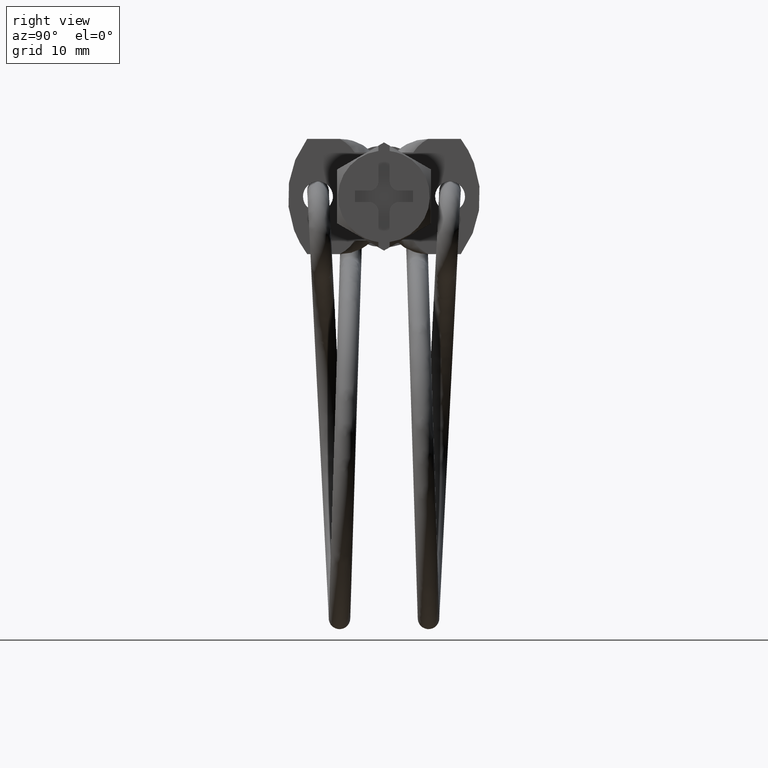
[diagram: clean part render]
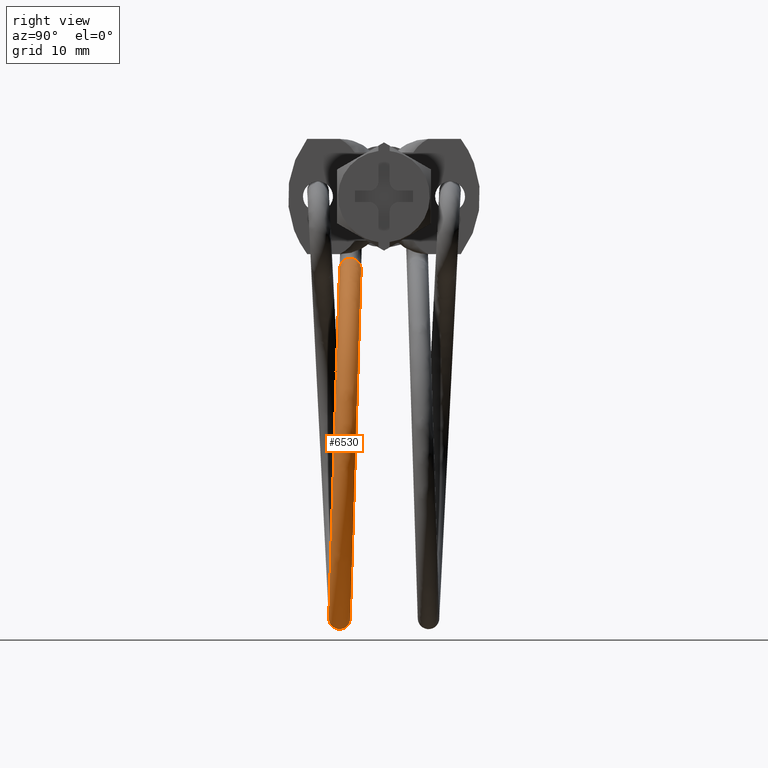
[diagram: same view with one face highlighted and labeled with its STEP entity id]
A machine part, right view. The second image highlights one B-rep face of the part: STEP entity #6530.
In plain terms, the highlighted face is a freeform B-spline surface patch.
Its self-contained STEP definition (entity closure, byte-faithful):
#5993=CARTESIAN_POINT('',(-30.454386614647841,-2.733501426702852,-6.971718508181986));
#5994=VERTEX_POINT('',#5993);
#6000=CARTESIAN_POINT('',(-30.454386614502209,-2.442401410167070,-7.772746310770300));
#6001=VERTEX_POINT('',#6000);
#6002=CARTESIAN_POINT('',(-30.454386614502209,-2.442401410167070,-7.772746310770300));
#6003=CARTESIAN_POINT('',(-30.454386614530659,-2.437409542836940,-7.618183402133792));
#6004=CARTESIAN_POINT('',(-30.454386614584120,-2.488218604476189,-7.325611714358591));
#6005=CARTESIAN_POINT('',(-30.454386614629719,-2.642617586227781,-7.073480896170459));
#6006=CARTESIAN_POINT('',(-30.454386614647841,-2.733501426702852,-6.971718508181986));
#6007=B_SPLINE_CURVE_WITH_KNOTS('',3,(#6002,#6003,#6004,#6005,#6006),.UNSPECIFIED.,.F.,.U.,(4,1,4),(0.000000016998237,0.463841894550051,0.873121413704927),.UNSPECIFIED.);
#6008=EDGE_CURVE('',#6001,#5994,#6007,.T.);
#6043=CARTESIAN_POINT('',(-30.454386614502209,-4.741293517165886,-7.701366479009998));
#6044=VERTEX_POINT('',#6043);
#6053=CARTESIAN_POINT('',(-30.454386614502209,-3.556157547786270,-6.587610341391132));
#6054=VERTEX_POINT('',#6053);
#6055=CARTESIAN_POINT('',(-30.454386614502209,-3.556157547786270,-6.587610341391132));
#6056=CARTESIAN_POINT('',(-30.454386614502369,-3.697235524930150,-6.583095772587232));
#6057=CARTESIAN_POINT('',(-30.454386614502010,-3.914677767675308,-6.616863168630717));
#6058=CARTESIAN_POINT('',(-30.454386614502329,-4.197565011027152,-6.748432708079373));
#6059=CARTESIAN_POINT('',(-30.454386614502269,-4.377822643602884,-6.887222043058672));
#6060=CARTESIAN_POINT('',(-30.454386614502020,-4.526803758234594,-7.057718248104353));
#6061=CARTESIAN_POINT('',(-30.454386614502411,-4.679166138555701,-7.308086639766808));
#6062=CARTESIAN_POINT('',(-30.454386614502042,-4.736549054896689,-7.541450523485653));
#6063=CARTESIAN_POINT('',(-30.454386614502209,-4.741293517165886,-7.701366479009998));
#6064=B_SPLINE_CURVE_WITH_KNOTS('',3,(#6055,#6056,#6057,#6058,#6059,#6060,#6061,#6062,#6063),.UNSPECIFIED.,.F.,.U.,(4,1,1,1,1,1,4),(0.000000062858495,0.423388863931587,0.649199499814147,0.931448809727142,1.100804440558367,1.326619385496072,1.806461105987403),.UNSPECIFIED.);
#6065=EDGE_CURVE('',#6054,#6044,#6064,.T.);
#6067=CARTESIAN_POINT('',(-30.454386614647841,-2.733501426702852,-6.971718508181986));
#6068=CARTESIAN_POINT('',(-30.454386614635020,-2.804646445390944,-6.891867207528533));
#6069=CARTESIAN_POINT('',(-30.454386614609451,-2.946968935978058,-6.771318928981169));
#6070=CARTESIAN_POINT('',(-30.454386614560029,-3.226871005583899,-6.631871504203806));
#6071=CARTESIAN_POINT('',(-30.454386614524211,-3.429814706222530,-6.591446156218868));
#6072=CARTESIAN_POINT('',(-30.454386614502209,-3.556157547786270,-6.587610341391132));
#6073=B_SPLINE_CURVE_WITH_KNOTS('',3,(#6067,#6068,#6069,#6070,#6071,#6072),.UNSPECIFIED.,.F.,.U.,(4,1,1,4),(0.000000014743124,0.320839157782899,0.554166442193007,0.933339842870285),.UNSPECIFIED.);
#6074=EDGE_CURVE('',#5994,#6054,#6073,.T.);
#6264=CARTESIAN_POINT('',(-30.454066261055949,-5.899446053480765,-45.001366476247242));
#6265=VERTEX_POINT('',#6264);
#6266=CARTESIAN_POINT('',(-30.454386614502209,-4.741293517165886,-7.701366479009998));
#6267=CARTESIAN_POINT('',(-28.012488475726780,-4.741293517165886,-7.701366479009998));
#6268=CARTESIAN_POINT('',(-25.572412207129769,-4.756367988318658,-8.186861918220940));
#6269=CARTESIAN_POINT('',(-21.061355584068920,-4.814389906086253,-10.055542825708880));
#6270=CARTESIAN_POINT('',(-18.992547709532460,-4.857314487581241,-11.437991889553389));
#6271=CARTESIAN_POINT('',(-15.540145282254519,-4.964518534318257,-14.890655349322580));
#6272=CARTESIAN_POINT('',(-14.157906828894760,-5.028755826492985,-16.959511499772809));
#6273=CARTESIAN_POINT('',(-12.289625505479020,-5.168817993746075,-21.470418892624242));
#6274=CARTESIAN_POINT('',(-11.804316038457520,-5.244587804661427,-23.910696712923890));
#6275=CARTESIAN_POINT('',(-11.804456804750840,-5.396185169541728,-28.793112053132059));
#6276=CARTESIAN_POINT('',(-12.289906404814360,-5.471953141281996,-31.233330640104061));
#6277=CARTESIAN_POINT('',(-14.158382223528021,-5.612008896891137,-35.744031536560946));
#6278=CARTESIAN_POINT('',(-15.540673964543791,-5.676241638078534,-37.812741115785670));
#6279=CARTESIAN_POINT('',(-18.993046387471310,-5.783436399450095,-41.265105526769339));
#6280=CARTESIAN_POINT('',(-21.061770447733359,-5.826356283928620,-42.647403316352069));
#6281=CARTESIAN_POINT('',(-25.572533728308478,-5.884371871562894,-44.515880352522991));
#6282=CARTESIAN_POINT('',(-28.011971415142529,-5.899444752630930,-45.001324580585987));
#6283=CARTESIAN_POINT('',(-30.454066261055949,-5.899446053480765,-45.001366476247242));
#6284=B_SPLINE_CURVE_WITH_KNOTS('',3,(#6266,#6267,#6268,#6269,#6270,#6271,#6272,#6273,#6274,#6275,#6276,#6277,#6278,#6279,#6280,#6281,#6282,#6283),.UNSPECIFIED.,.F.,.U.,(4,2,2,2,2,2,2,2,4),(0.611792665864965,0.660318582631844,0.708844499398724,0.757370416165603,0.805896332932482,0.854422249699362,0.902948166466241,0.951474083233121,1.0),.UNSPECIFIED.);
#6285=EDGE_CURVE('',#6044,#6265,#6284,.T.);
#6290=CARTESIAN_POINT('',(-30.454067464996601,-3.600553946483555,-45.072746308007211));
#6291=VERTEX_POINT('',#6290);
#6292=CARTESIAN_POINT('',(-30.454386614502209,-2.442401410167070,-7.772746310770300));
#6293=CARTESIAN_POINT('',(-28.012488475729061,-2.442401410167070,-7.772746310770300));
#6294=CARTESIAN_POINT('',(-25.572412222799521,-2.457475881319858,-8.258241749981226));
#6295=CARTESIAN_POINT('',(-21.061355660059991,-2.515497799087542,-10.126922657469169));
#6296=CARTESIAN_POINT('',(-18.992547830143639,-2.558422380582850,-11.509371721313640));
#6297=CARTESIAN_POINT('',(-15.540145514309041,-2.665626427319486,-14.962035181082820));
#6298=CARTESIAN_POINT('',(-14.157907127726659,-2.729863719495096,-17.030891331528760));
#6299=CARTESIAN_POINT('',(-12.289625949911031,-2.869925886747327,-21.541798724388620));
#6300=CARTESIAN_POINT('',(-11.804316561655090,-2.945695697664367,-23.982076544684020));
#6301=CARTESIAN_POINT('',(-11.804457485539240,-3.097293062542763,-28.864491884892189));
#6302=CARTESIAN_POINT('',(-12.289907164366110,-3.173061034284197,-31.304710471864102));
#6303=CARTESIAN_POINT('',(-14.158383128672179,-3.313116789893527,-35.815411368321001));
#6304=CARTESIAN_POINT('',(-15.540674936459761,-3.377349531080747,-37.884120947537220));
#6305=CARTESIAN_POINT('',(-18.993047470819079,-3.484544292452993,-41.336485358537821));
#6306=CARTESIAN_POINT('',(-21.061771575695118,-3.527464176931837,-42.718783148112017));
#6307=CARTESIAN_POINT('',(-25.572534916582509,-3.585479764565138,-44.587260184282961));
#6308=CARTESIAN_POINT('',(-28.011972619080900,-3.600552645633720,-45.072704412345907));
#6309=CARTESIAN_POINT('',(-30.454067464996601,-3.600553946483555,-45.072746308007211));
#6310=B_SPLINE_CURVE_WITH_KNOTS('',3,(#6292,#6293,#6294,#6295,#6296,#6297,#6298,#6299,#6300,#6301,#6302,#6303,#6304,#6305,#6306,#6307,#6308,#6309),.UNSPECIFIED.,.F.,.U.,(4,2,2,2,2,2,2,2,4),(0.611792665864965,0.660318582631844,0.708844499398724,0.757370416165603,0.805896332932482,0.854422249699362,0.902948166466241,0.951474083233121,1.0),.UNSPECIFIED.);
#6311=EDGE_CURVE('',#6001,#6291,#6310,.T.);
#6329=CARTESIAN_POINT('',(-31.039306674660882,-2.443522662457145,-7.808857884200191));
#6330=CARTESIAN_POINT('',(-31.039685252017989,-2.443244098650943,-7.796819162092629));
#6331=CARTESIAN_POINT('',(-31.049531628350529,-2.428478120582053,-7.483938898779627));
#6332=CARTESIAN_POINT('',(-31.059315014659720,-2.547650958241192,-7.168904395580984));
#6333=CARTESIAN_POINT('',(-31.072701083205711,-2.960008455637245,-6.730119361652000));
#6334=CARTESIAN_POINT('',(-31.076597628984970,-3.255233274673340,-6.596953939519140));
#6335=CARTESIAN_POINT('',(-31.076597628984970,-3.857081820901725,-6.578266743263099));
#6336=CARTESIAN_POINT('',(-31.072701083205711,-4.159999465426430,-6.692860041768390));
#6337=CARTESIAN_POINT('',(-31.059315014658949,-4.598784649058447,-7.105217379856222));
#6338=CARTESIAN_POINT('',(-31.049531634995709,-4.737272419028869,-7.412251395841977));
#6339=CARTESIAN_POINT('',(-31.039685265390730,-4.741945910204211,-7.725444813396194));
#6340=CARTESIAN_POINT('',(-31.039306694717482,-4.742414749656963,-7.737477414809312));
#6341=CARTESIAN_POINT('',(-30.844333321274650,-2.443522662457145,-7.808857884200191));
#6342=CARTESIAN_POINT('',(-30.844585706179402,-2.443244098650943,-7.796819162092629));
#6343=CARTESIAN_POINT('',(-30.851149957067761,-2.428478120582053,-7.483938898779627));
#6344=CARTESIAN_POINT('',(-30.857672214607220,-2.547650958241192,-7.168904395580984));
#6345=CARTESIAN_POINT('',(-30.866596260304540,-2.960008455637245,-6.730119361652000));
#6346=CARTESIAN_POINT('',(-30.869193957490719,-3.255233274673340,-6.596953939519140));
#6347=CARTESIAN_POINT('',(-30.869193957490719,-3.857081820901725,-6.578266743263099));
#6348=CARTESIAN_POINT('',(-30.866596260304540,-4.159999465426430,-6.692860041768390));
#6349=CARTESIAN_POINT('',(-30.857672214606701,-4.598784649058447,-7.105217379856222));
#6350=CARTESIAN_POINT('',(-30.851149961497882,-4.737272419028869,-7.412251395841977));
#6351=CARTESIAN_POINT('',(-30.844585715094549,-4.741945910204211,-7.725444813396194));
#6352=CARTESIAN_POINT('',(-30.844333334645722,-4.742414749656963,-7.737477414809312));
#6353=CARTESIAN_POINT('',(-30.649359967888429,-2.443522662457145,-7.808857884200191));
#6354=CARTESIAN_POINT('',(-30.649486160340800,-2.443244098650943,-7.796819162092629));
#6355=CARTESIAN_POINT('',(-30.652768285784980,-2.428478120582053,-7.483938898779627));
#6356=CARTESIAN_POINT('',(-30.656029414554709,-2.547650958241192,-7.168904395580984));
#6357=CARTESIAN_POINT('',(-30.660491437403369,-2.960008455637245,-6.730119361652000));
#6358=CARTESIAN_POINT('',(-30.661790285996460,-3.255233274673340,-6.596953939519140));
#6359=CARTESIAN_POINT('',(-30.661790285996460,-3.857081820901725,-6.578266743263099));
#6360=CARTESIAN_POINT('',(-30.660491437403369,-4.159999465426430,-6.692860041768390));
#6361=CARTESIAN_POINT('',(-30.656029414554450,-4.598784649058447,-7.105217379856222));
#6362=CARTESIAN_POINT('',(-30.652768288000040,-4.737272419028869,-7.412251395841977));
#6363=CARTESIAN_POINT('',(-30.649486164798379,-4.741945910204211,-7.725444813396194));
#6364=CARTESIAN_POINT('',(-30.649359974573962,-4.742414749656963,-7.737477414809312));
#6365=CARTESIAN_POINT('',(-28.017439427388620,-2.443521769258805,-7.808829117477075));
#6366=CARTESIAN_POINT('',(-28.015862167829180,-2.443243204785658,-7.796790373889597));
#6367=CARTESIAN_POINT('',(-27.974839399550341,-2.428477209370304,-7.483909551907963));
#6368=CARTESIAN_POINT('',(-27.934079065395171,-2.547650029793632,-7.168874493612951));
#6369=CARTESIAN_POINT('',(-27.878308945549570,-2.960007503607436,-6.730088700181194));
#6370=CARTESIAN_POINT('',(-27.862074841835700,-3.255232315779089,-6.596923056962281));
#6371=CARTESIAN_POINT('',(-27.862074841835700,-3.857080862007423,-6.578235860706548));
#6372=CARTESIAN_POINT('',(-27.878308945549570,-4.159998513396645,-6.692829380297583));
#6373=CARTESIAN_POINT('',(-27.934079065395942,-4.598783720610966,-7.105187477888036));
#6374=CARTESIAN_POINT('',(-27.974839371867301,-4.737271507817174,-7.412222048969827));
#6375=CARTESIAN_POINT('',(-28.015862112115691,-4.741945016338947,-7.725416025192268));
#6376=CARTESIAN_POINT('',(-28.017439343828251,-4.742413856458631,-7.737448648084921));
#6377=CARTESIAN_POINT('',(-23.145436123130899,-2.473617632278551,-8.778110499467827));
#6378=CARTESIAN_POINT('',(-23.140705602003418,-2.473358548995898,-8.766699176174789));
#6379=CARTESIAN_POINT('',(-23.017670004666630,-2.459099237695173,-8.470136858777774));
#6380=CARTESIAN_POINT('',(-22.895421500466590,-2.578775500833698,-8.171315911032934));
#6381=CARTESIAN_POINT('',(-22.728155606513688,-2.991821807580131,-7.754714991864642));
#6382=CARTESIAN_POINT('',(-22.679466238841240,-3.287247131877257,-7.628007135558361));
#6383=CARTESIAN_POINT('',(-22.679466238841272,-3.889095678105882,-7.609319939300788));
#6384=CARTESIAN_POINT('',(-22.728155606513610,-4.191812817369196,-7.717455671981058));
#6385=CARTESIAN_POINT('',(-22.895421500467130,-4.629909191650580,-8.107628895308958));
#6386=CARTESIAN_POINT('',(-23.017669921641190,-4.767893536483559,-8.398449366852073));
#6387=CARTESIAN_POINT('',(-23.140705434908099,-4.772060361237068,-8.695324849640508));
#6388=CARTESIAN_POINT('',(-23.145435872517108,-4.772509720510208,-8.706730063315986));
#6389=CARTESIAN_POINT('',(-16.949191883606389,-2.602180292644752,-12.918659417489430));
#6390=CARTESIAN_POINT('',(-16.940452840869821,-2.602004389916314,-12.909927045867009));
#6391=CARTESIAN_POINT('',(-16.713160051287080,-2.589908512389353,-12.683041284212999));
#6392=CARTESIAN_POINT('',(-16.487321317263611,-2.711734369210176,-12.453451151789359));
#6393=CARTESIAN_POINT('',(-16.178318618354879,-3.127721846577706,-12.131574943489840));
#6394=CARTESIAN_POINT('',(-16.088371136156560,-3.424003315151279,-12.032440468493199));
#6395=CARTESIAN_POINT('',(-16.088371136156489,-4.025851861379434,-12.013753272239111));
#6396=CARTESIAN_POINT('',(-16.178318618354840,-4.327712856366780,-12.094315623606230));
#6397=CARTESIAN_POINT('',(-16.487321317262911,-4.762868060027583,-12.389764136063629));
#6398=CARTESIAN_POINT('',(-16.713159897910081,-4.898702812638116,-12.611353839304339));
#6399=CARTESIAN_POINT('',(-16.940452532183130,-4.900706205096011,-12.838552813959250));
#6400=CARTESIAN_POINT('',(-16.949191420629820,-4.901072385283502,-12.847279123261609));
#6401=CARTESIAN_POINT('',(-12.809281104203411,-2.794565069060098,-19.114693130411538));
#6402=CARTESIAN_POINT('',(-12.797865569105390,-2.794513560121792,-19.109967043130819));
#6403=CARTESIAN_POINT('',(-12.500960187678110,-2.785653026833113,-18.987280284884321));
#6404=CARTESIAN_POINT('',(-12.205954193032889,-2.910693530490202,-18.861222565690639));
#6405=CARTESIAN_POINT('',(-11.802313741654300,-3.331079432036847,-18.681004055090899));
#6406=CARTESIAN_POINT('',(-11.684818190828850,-3.628641236290105,-18.623104667321272));
#6407=CARTESIAN_POINT('',(-11.684818190828850,-4.230489782518330,-18.604417471062298));
#6408=CARTESIAN_POINT('',(-11.802313741654240,-4.531070441826356,-18.643744735207370));
#6409=CARTESIAN_POINT('',(-12.205954193033770,-4.961827221307780,-18.797535549967169));
#6410=CARTESIAN_POINT('',(-12.500959987324650,-5.094447329264760,-18.915592910287991));
#6411=CARTESIAN_POINT('',(-12.797865165876910,-5.093215379695018,-19.038592952736959));
#6412=CARTESIAN_POINT('',(-12.809280499430971,-5.093457168288577,-19.043313048429599));
#6413=CARTESIAN_POINT('',(-11.356038090216440,-3.021495194568228,-26.423310445795639));
#6414=CARTESIAN_POINT('',(-11.343683442898771,-3.021590348656357,-26.423307856252979));
#6415=CARTESIAN_POINT('',(-11.022352796305810,-3.016544357693626,-26.423474024789559));
#6416=CARTESIAN_POINT('',(-10.703077791750131,-3.145375000982230,-26.419483307842441));
#6417=CARTESIAN_POINT('',(-10.266231391028979,-3.570946741798295,-26.406282352066000));
#6418=CARTESIAN_POINT('',(-10.139069932598771,-3.870018090100979,-26.397000043022551));
#6419=CARTESIAN_POINT('',(-10.139069932598719,-4.471866636329576,-26.378312846766971));
#6420=CARTESIAN_POINT('',(-10.266231391029070,-4.770937751587519,-26.369023032182429));
#6421=CARTESIAN_POINT('',(-10.703077791749980,-5.196508691799261,-26.355796292118779));
#6422=CARTESIAN_POINT('',(-11.022352579471180,-5.325338662699425,-26.351786733097839));
#6423=CARTESIAN_POINT('',(-11.343683006498599,-5.320292173410286,-26.351933932705890));
#6424=CARTESIAN_POINT('',(-11.356037435692031,-5.320387301566786,-26.351930614054851));
#6425=CARTESIAN_POINT('',(-12.809706936594271,-3.248419593618266,-33.731743332222102));
#6426=CARTESIAN_POINT('',(-12.798291676169770,-3.248661407041939,-33.736464121546931));
#6427=CARTESIAN_POINT('',(-12.501393438695560,-3.247429862409248,-33.859480125175430));
#6428=CARTESIAN_POINT('',(-12.206394542302530,-3.380050549947768,-33.977553338565933));
#6429=CARTESIAN_POINT('',(-11.802763803074599,-3.810807999527722,-34.131365734481903));
#6430=CARTESIAN_POINT('',(-11.685271079354180,-4.111388853890603,-34.170699280674611));
#6431=CARTESIAN_POINT('',(-11.685271079354161,-4.713237400119176,-34.152012084418473));
#6432=CARTESIAN_POINT('',(-11.802763803073701,-5.010799009316792,-34.094106414598429));
#6433=CARTESIAN_POINT('',(-12.206394542302631,-5.431184240765154,-33.913866322836753));
#6434=CARTESIAN_POINT('',(-12.501393238347790,-5.556224169989491,-33.787792916384191));
#6435=CARTESIAN_POINT('',(-12.798291272951809,-5.547363236976742,-33.665090364844623));
#6436=CARTESIAN_POINT('',(-12.809706331837210,-5.547311708387002,-33.660363750718503));
#6437=CARTESIAN_POINT('',(-16.949743855297260,-3.440791135557111,-39.927350809404089));
#6438=CARTESIAN_POINT('',(-16.941005169650840,-3.441157334214871,-39.936077607510683));
#6439=CARTESIAN_POINT('',(-16.713721667585510,-3.443160911287182,-40.163285447539593));
#6440=CARTESIAN_POINT('',(-16.487892161665080,-3.578996024552211,-40.384883952997157));
#6441=CARTESIAN_POINT('',(-16.178902089061982,-4.014151595779133,-40.680344303129388));
#6442=CARTESIAN_POINT('',(-16.088958282248779,-4.316012697758269,-40.760910100318490));
#6443=CARTESIAN_POINT('',(-16.088958282248761,-4.917861243986426,-40.742222904060498));
#6444=CARTESIAN_POINT('',(-16.178902089062650,-5.214142605568840,-40.643084983245863));
#6445=CARTESIAN_POINT('',(-16.487892161665108,-5.630129715369519,-40.321196937272497));
#6446=CARTESIAN_POINT('',(-16.713721514214001,-5.751955221050312,-40.091598309053623));
#6447=CARTESIAN_POINT('',(-16.941004860976012,-5.739859168542961,-39.864703992309877));
#6448=CARTESIAN_POINT('',(-16.949743392338849,-5.739683256915183,-39.855971440129089));
#6449=CARTESIAN_POINT('',(-23.145910096451122,-3.569339595062858,-44.067442367988249));
#6450=CARTESIAN_POINT('',(-23.141179882065021,-3.569788965091846,-44.078847822013429));
#6451=CARTESIAN_POINT('',(-23.018152262730659,-3.573955737098682,-44.375724525603943));
#6452=CARTESIAN_POINT('',(-22.895911685491662,-3.711940206734614,-44.666546203406000));
#6453=CARTESIAN_POINT('',(-22.728656637565891,-4.150036623881382,-45.056720806933157));
#6454=CARTESIAN_POINT('',(-22.679970427060301,-4.452753775619136,-45.164856941391527));
#6455=CARTESIAN_POINT('',(-22.679970427060290,-5.054602321847927,-45.146169745140639));
#6456=CARTESIAN_POINT('',(-22.728656637565312,-5.350027633668637,-45.019461487049668));
#6457=CARTESIAN_POINT('',(-22.895911685491669,-5.763073897551475,-44.602859187684643));
#6458=CARTESIAN_POINT('',(-23.018152179711251,-5.882750048320759,-44.304037434129498));
#6459=CARTESIAN_POINT('',(-23.141179714981149,-5.868490802357477,-44.007474301426143));
#6460=CARTESIAN_POINT('',(-23.145909845854209,-5.868231720826895,-43.996063140618929));
#6461=CARTESIAN_POINT('',(-28.016980776658450,-3.599432290061481,-45.036621718965982));
#6462=CARTESIAN_POINT('',(-28.015403220267409,-3.599901139229034,-45.048654527201379));
#6463=CARTESIAN_POINT('',(-27.974372731728451,-3.604574541982063,-45.361848016598039));
#6464=CARTESIAN_POINT('',(-27.933604726703130,-3.743062401306102,-45.668882097186611));
#6465=CARTESIAN_POINT('',(-27.877824111226850,-4.181847578834869,-46.081239238360723));
#6466=CARTESIAN_POINT('',(-27.861586952343629,-4.484765221580401,-46.195832479508731));
#6467=CARTESIAN_POINT('',(-27.861586952343611,-5.086613767808283,-46.177145283251747));
#6468=CARTESIAN_POINT('',(-27.877824111226150,-5.381838588627415,-46.043979918477220));
#6469=CARTESIAN_POINT('',(-27.933604726703109,-5.794196092123865,-45.605195081461062));
#6470=CARTESIAN_POINT('',(-27.974372704040960,-5.913368853547174,-45.290160936137177));
#6471=CARTESIAN_POINT('',(-28.015403164544189,-5.898602977183237,-44.977281028778393));
#6472=CARTESIAN_POINT('',(-28.016980693083120,-5.898324416857975,-44.965242524837130));
#6473=CARTESIAN_POINT('',(-30.649068759529321,-3.599432798067606,-45.036638079954542));
#6474=CARTESIAN_POINT('',(-30.649194763502958,-3.599901647475304,-45.048670895923330));
#6475=CARTESIAN_POINT('',(-30.652471986824981,-3.604575056474242,-45.361864586457848));
#6476=CARTESIAN_POINT('',(-30.655728244832691,-3.743062922004059,-45.668898866880632));
#6477=CARTESIAN_POINT('',(-30.660183603286210,-4.181848108021775,-46.081256281463332));
#6478=CARTESIAN_POINT('',(-30.661480511942990,-4.484765753237835,-46.195849602239292));
#6479=CARTESIAN_POINT('',(-30.661480511942990,-5.086614299466225,-46.177162405983402));
#6480=CARTESIAN_POINT('',(-30.660183603286459,-5.381839117810711,-46.043996961579943));
#6481=CARTESIAN_POINT('',(-30.655728244832691,-5.794196612821271,-45.605211851155879));
#6482=CARTESIAN_POINT('',(-30.652471989036460,-5.913369368038813,-45.290177505996553));
#6483=CARTESIAN_POINT('',(-30.649194767953620,-5.898603485429269,-44.977297397499846));
#6484=CARTESIAN_POINT('',(-30.649068766204600,-5.898324924863879,-44.965258885825321));
#6485=CARTESIAN_POINT('',(-30.844070236575782,-3.599432901940566,-45.036641425326472));
#6486=CARTESIAN_POINT('',(-30.844322451203080,-3.599901751415496,-45.048674243460532));
#6487=CARTESIAN_POINT('',(-30.850882273364501,-3.604575162163072,-45.361867990311147));
#6488=CARTESIAN_POINT('',(-30.857400130508569,-3.743063029430356,-45.668902326688162));
#6489=CARTESIAN_POINT('',(-30.866318155387770,-4.181848217825129,-46.081259817828872));
#6490=CARTESIAN_POINT('',(-30.868914099976241,-4.484765863733119,-46.195853160893677));
#6491=CARTESIAN_POINT('',(-30.868914099976241,-5.086614409961510,-46.177165964637801));
#6492=CARTESIAN_POINT('',(-30.866318155388271,-5.381839227613811,-46.044000497945483));
#6493=CARTESIAN_POINT('',(-30.857400130508580,-5.794196720247524,-45.605215310963423));
#6494=CARTESIAN_POINT('',(-30.850882277791079,-5.913369473727648,-45.290180909849880));
#6495=CARTESIAN_POINT('',(-30.844322460111709,-5.898603589369463,-44.977300745037113));
#6496=CARTESIAN_POINT('',(-30.844070249937300,-5.898325028736841,-44.965262231197357));
#6497=CARTESIAN_POINT('',(-31.039071713622238,-3.599433005813526,-45.036644770698402));
#6498=CARTESIAN_POINT('',(-31.039450138903192,-3.599901855355688,-45.048677590997713));
#6499=CARTESIAN_POINT('',(-31.049292559904021,-3.604575267851901,-45.361871394164460));
#6500=CARTESIAN_POINT('',(-31.059072016184452,-3.743063136856652,-45.668905786495692));
#6501=CARTESIAN_POINT('',(-31.072452707489330,-4.181848327628484,-46.081263354194398));
#6502=CARTESIAN_POINT('',(-31.076347688009481,-4.484765974228404,-46.195856719548082));
#6503=CARTESIAN_POINT('',(-31.076347688009481,-5.086614520456795,-46.177169523292200));
#6504=CARTESIAN_POINT('',(-31.072452707490090,-5.381839337416911,-46.044004034311023));
#6505=CARTESIAN_POINT('',(-31.059072016184459,-5.794196827673778,-45.605218770770954));
#6506=CARTESIAN_POINT('',(-31.049292566545720,-5.913369579416480,-45.290184313703229));
#6507=CARTESIAN_POINT('',(-31.039450152269801,-5.898603693309657,-44.977304092574371));
#6508=CARTESIAN_POINT('',(-31.039071733670010,-5.898325132609805,-44.965265576569401));
#6509=B_SPLINE_SURFACE_WITH_KNOTS('',3,3,((#6329,#6341,#6353,#6365,#6377,#6389,#6401,#6413,#6425,#6437,#6449,#6461,#6473,#6485,#6497),(#6330,#6342,#6354,#6366,#6378,#6390,#6402,#6414,#6426,#6438,#6450,#6462,#6474,#6486,#6498),(#6331,#6343,#6355,#6367,#6379,#6391,#6403,#6415,#6427,#6439,#6451,#6463,#6475,#6487,#6499),(#6332,#6344,#6356,#6368,#6380,#6392,#6404,#6416,#6428,#6440,#6452,#6464,#6476,#6488,#6500),(#6333,#6345,#6357,#6369,#6381,#6393,#6405,#6417,#6429,#6441,#6453,#6465,#6477,#6489,#6501),(#6334,#6346,#6358,#6370,#6382,#6394,#6406,#6418,#6430,#6442,#6454,#6466,#6478,#6490,#6502),(#6335,#6347,#6359,#6371,#6383,#6395,#6407,#6419,#6431,#6443,#6455,#6467,#6479,#6491,#6503),(#6336,#6348,#6360,#6372,#6384,#6396,#6408,#6420,#6432,#6444,#6456,#6468,#6480,#6492,#6504),(#6337,#6349,#6361,#6373,#6385,#6397,#6409,#6421,#6433,#6445,#6457,#6469,#6481,#6493,#6505),(#6338,#6350,#6362,#6374,#6386,#6398,#6410,#6422,#6434,#6446,#6458,#6470,#6482,#6494,#6506),(#6339,#6351,#6363,#6375,#6387,#6399,#6411,#6423,#6435,#6447,#6459,#6471,#6483,#6495,#6507),(#6340,#6352,#6364,#6376,#6388,#6400,#6412,#6424,#6436,#6448,#6460,#6472,#6484,#6496,#6508)),.UNSPECIFIED.,.F.,.F.,.U.,(4,1,2,2,2,1,4),(4,2,1,1,1,1,1,1,1,2,4),(0.0,0.036149024447438,0.939858102098531,1.843567179749624,2.747276257400718,3.650985335051810,3.687133721207323),(0.0,0.621002929391985,8.383534603340678,16.146066277289510,23.908597951238161,31.671129625186840,39.433661299135672,47.196192973084372,54.958724647033179,62.721256320981851,63.342298797980533),.UNSPECIFIED.);
#6510=ORIENTED_EDGE('',*,*,#6285,.T.);
#6511=CARTESIAN_POINT('',(-30.454067464996601,-3.600553946483555,-45.072746308007211));
#6512=CARTESIAN_POINT('',(-30.454072619464501,-3.609897544617370,-45.373670581077107));
#6513=CARTESIAN_POINT('',(-30.454077677315858,-3.743062966755941,-45.668895400069111));
#6514=CARTESIAN_POINT('',(-30.454084743960671,-4.181847998243344,-46.081252745097807));
#6515=CARTESIAN_POINT('',(-30.454086709238869,-4.484765642770332,-46.195846043584922));
#6516=CARTESIAN_POINT('',(-30.454086394047980,-5.086614188998492,-46.177158847328919));
#6517=CARTESIAN_POINT('',(-30.454084115519720,-5.381839008032095,-46.043993425214417));
#6518=CARTESIAN_POINT('',(-30.454076603127639,-5.794196353115094,-45.605208393797717));
#6519=CARTESIAN_POINT('',(-30.454071415523849,-5.908789651614580,-45.302290749317123));
#6520=CARTESIAN_POINT('',(-30.454066261055949,-5.899446053480765,-45.001366476247242));
#6521=B_SPLINE_CURVE_WITH_KNOTS('',3,(#6511,#6512,#6513,#6514,#6515,#6516,#6517,#6518,#6519,#6520),.UNSPECIFIED.,.F.,.U.,(4,2,2,2,4),(0.0,0.125000000000000,0.250000000000000,0.375000000000000,0.500000000000000),.UNSPECIFIED.);
#6522=EDGE_CURVE('',#6291,#6265,#6521,.T.);
#6523=ORIENTED_EDGE('',*,*,#6522,.F.);
#6524=ORIENTED_EDGE('',*,*,#6311,.F.);
#6525=ORIENTED_EDGE('',*,*,#6008,.T.);
#6526=ORIENTED_EDGE('',*,*,#6074,.T.);
#6527=ORIENTED_EDGE('',*,*,#6065,.T.);
#6528=EDGE_LOOP('',(#6510,#6523,#6524,#6525,#6526,#6527));
#6529=FACE_OUTER_BOUND('',#6528,.T.);
#6530=ADVANCED_FACE('',(#6529),#6509,.T.);